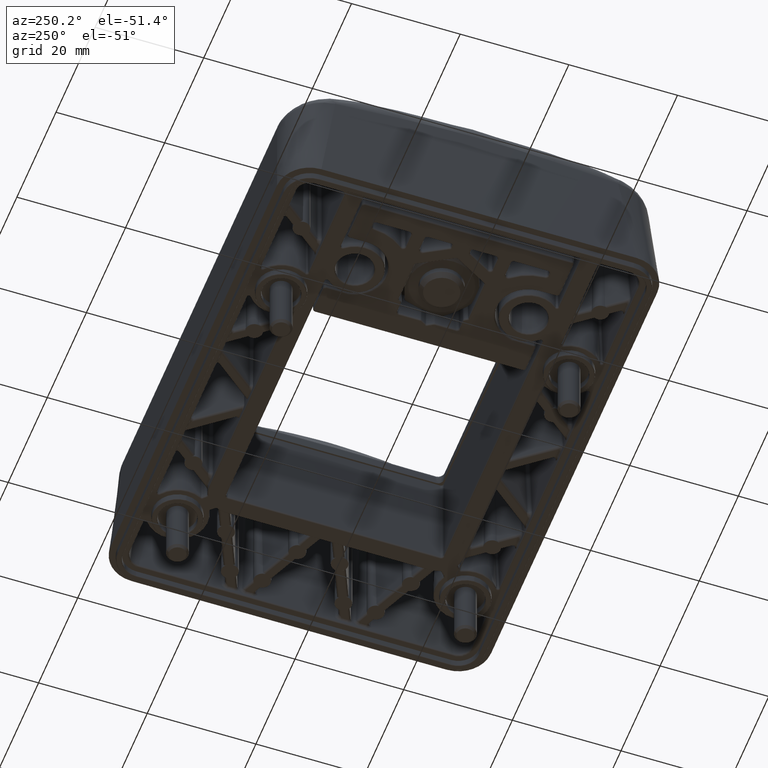
[diagram: clean part render]
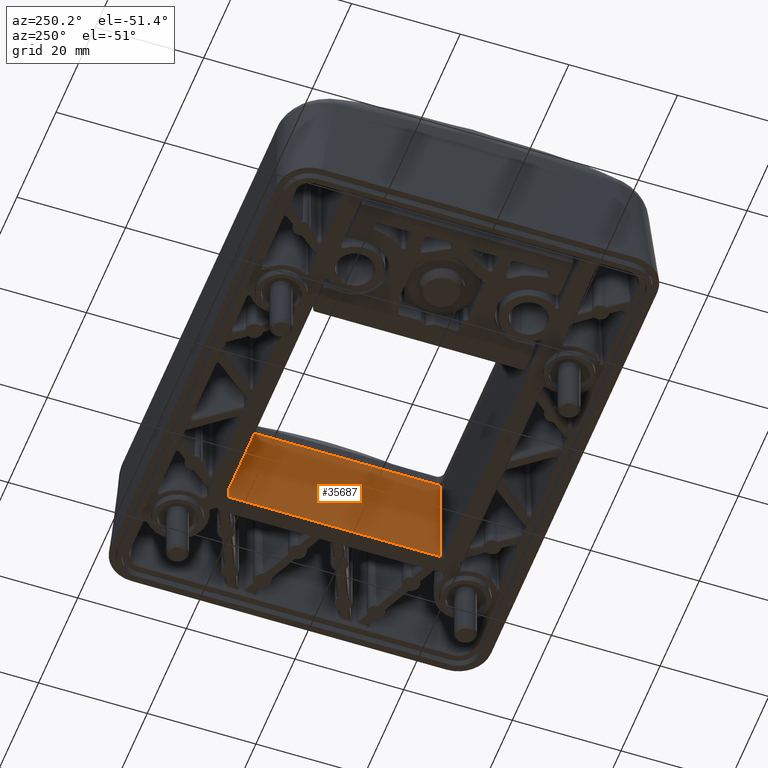
[diagram: same view with one face highlighted and labeled with its STEP entity id]
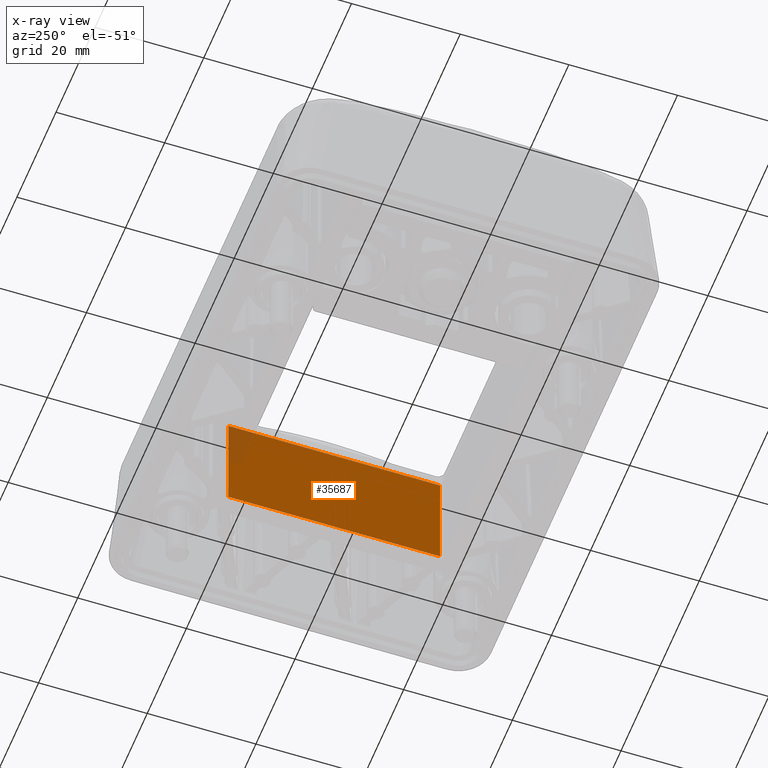
[diagram: x-ray of the same camera — body ghosted, the highlighted face saturated]
A machine part, auxiliary view. The second image highlights one B-rep face of the part: STEP entity #35687.
The next image is the same camera in x-ray: the body ghosted, the highlighted face saturated — about 4% of this face is hidden behind the body in this view.
In plain terms, the highlighted planar face has unit normal (1, 0, 0).
Its self-contained STEP definition (entity closure, byte-faithful):
#17190=CARTESIAN_POINT('',(20.000000000000004,-19.500000000000004,-19.700000000000003));
#17191=VERTEX_POINT('',#17190);
#17199=CARTESIAN_POINT('',(20.000000000000004,19.500000000000004,-19.700000000000003));
#17200=VERTEX_POINT('',#17199);
#17201=CARTESIAN_POINT('',(20.000000000000004,19.500000000000004,-19.700000000000003));
#17202=DIRECTION('',(0.0,-1.0,0.0));
#17203=VECTOR('',#17202,39.000000000000007);
#17204=LINE('',#17201,#17203);
#17205=EDGE_CURVE('',#17200,#17191,#17204,.T.);
#23336=CARTESIAN_POINT('',(20.000000000000004,19.500000000000004,0.0));
#23337=VERTEX_POINT('',#23336);
#23345=CARTESIAN_POINT('',(20.000000000000004,-19.500000000000004,0.0));
#23346=VERTEX_POINT('',#23345);
#23347=CARTESIAN_POINT('',(20.000000000000004,19.500000000000004,0.0));
#23348=DIRECTION('',(0.0,-1.0,0.0));
#23349=VECTOR('',#23348,39.000000000000007);
#23350=LINE('',#23347,#23349);
#23351=EDGE_CURVE('',#23337,#23346,#23350,.T.);
#35661=CARTESIAN_POINT('',(20.000000000000004,-19.500000000000004,0.0));
#35662=DIRECTION('',(0.0,-3.937200E-012,-1.0));
#35663=VECTOR('',#35662,19.700000000000003);
#35664=LINE('',#35661,#35663);
#35665=EDGE_CURVE('',#23346,#17191,#35664,.T.);
#35671=CARTESIAN_POINT('',(20.000000000000004,-21.450000000085325,-20.685000000000002));
#35672=DIRECTION('',(1.0,0.0,0.0));
#35673=DIRECTION('',(0.0,0.0,-1.0));
#35674=AXIS2_PLACEMENT_3D('',#35671,#35672,#35673);
#35675=PLANE('',#35674);
#35676=CARTESIAN_POINT('',(20.000000000000004,19.500000000000004,0.0));
#35677=DIRECTION('',(0.0,3.937200E-012,-1.0));
#35678=VECTOR('',#35677,19.700000000000003);
#35679=LINE('',#35676,#35678);
#35680=EDGE_CURVE('',#23337,#17200,#35679,.T.);
#35681=ORIENTED_EDGE('',*,*,#35680,.T.);
#35682=ORIENTED_EDGE('',*,*,#17205,.T.);
#35683=ORIENTED_EDGE('',*,*,#35665,.F.);
#35684=ORIENTED_EDGE('',*,*,#23351,.F.);
#35685=EDGE_LOOP('',(#35681,#35682,#35683,#35684));
#35686=FACE_OUTER_BOUND('',#35685,.T.);
#35687=ADVANCED_FACE('',(#35686),#35675,.F.);